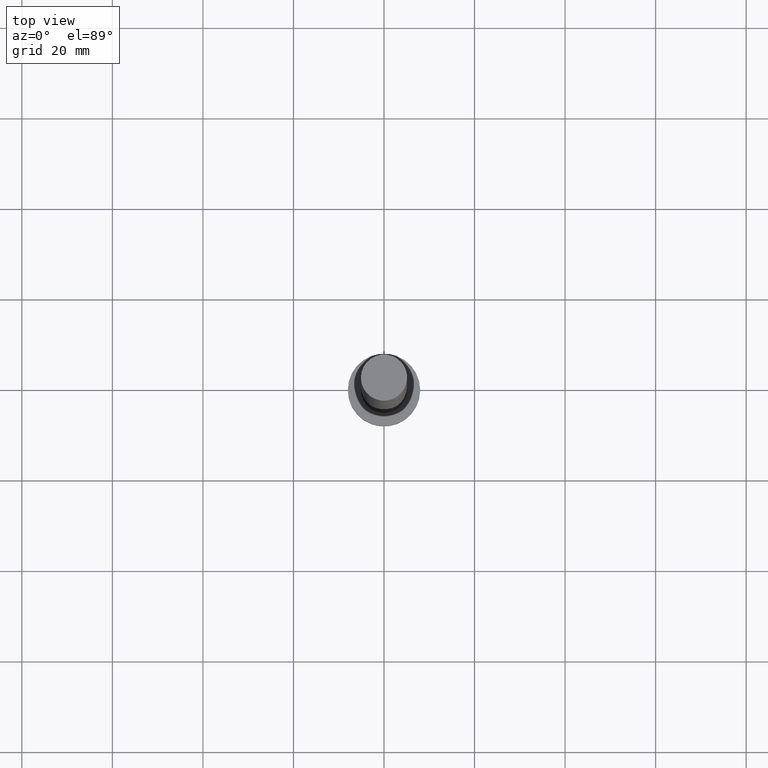
[diagram: clean part render]
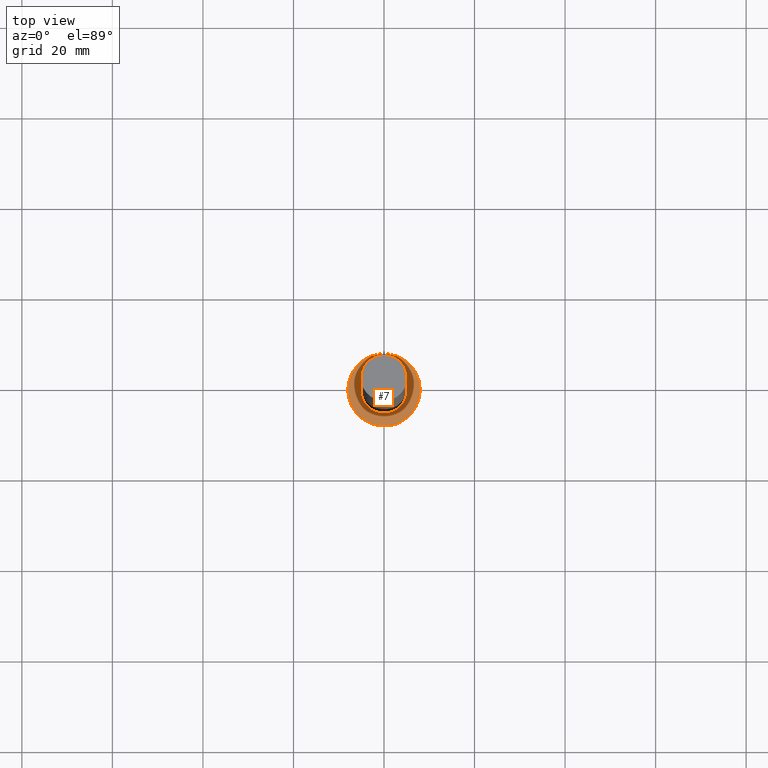
[diagram: same view with one face highlighted and labeled with its STEP entity id]
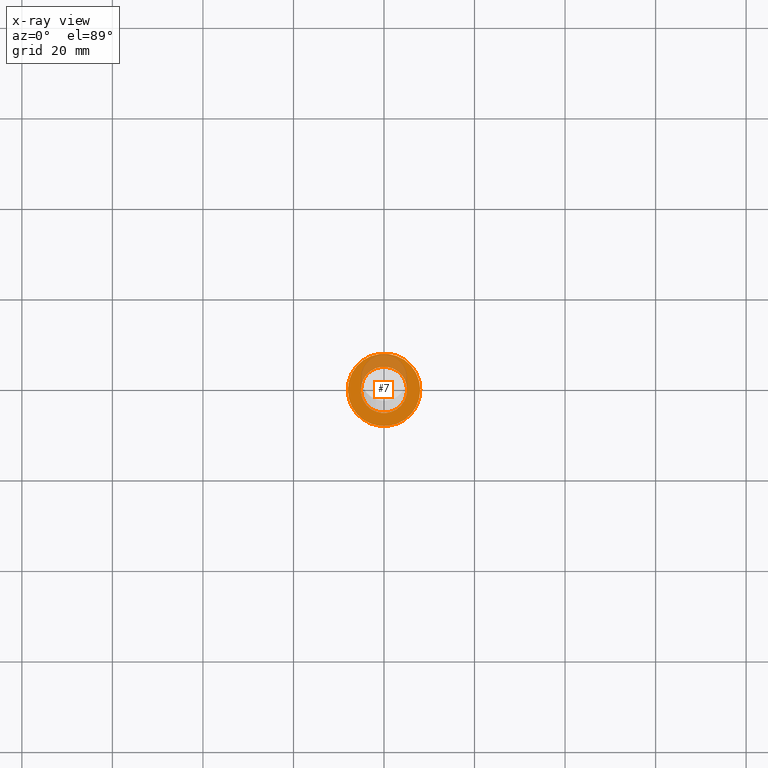
[diagram: x-ray of the same camera — body ghosted, the highlighted face saturated]
A machine part, top view. The second image highlights one B-rep face of the part: STEP entity #7.
The next image is the same camera in x-ray: the body ghosted, the highlighted face saturated — about 23% of this face is hidden behind the body in this view.
In plain terms, the highlighted planar face has unit normal (0, 0, 1).
Its self-contained STEP definition (entity closure, byte-faithful):
#3 = VERTEX_POINT ( 'NONE', #233 ) ;
#4 = CIRCLE ( 'NONE', #102, 8.000000000000000000 ) ;
#7 = ADVANCED_FACE ( 'NONE', ( #207, #46 ), #107, .T. ) ;
#17 = EDGE_CURVE ( 'NONE', #92, #36, #167, .T. ) ;
#33 = EDGE_CURVE ( 'NONE', #36, #92, #158, .T. ) ;
#34 = CIRCLE ( 'NONE', #208, 8.000000000000000000 ) ;
#36 = VERTEX_POINT ( 'NONE', #148 ) ;
#46 = FACE_OUTER_BOUND ( 'NONE', #232, .T. ) ;
#56 = VERTEX_POINT ( 'NONE', #122 ) ;
#65 = DIRECTION ( 'NONE',  ( 1.000000000000000000, 0.000000000000000000, -0.000000000000000000 ) ) ;
#68 = DIRECTION ( 'NONE',  ( 1.000000000000000000, 0.000000000000000000, 0.000000000000000000 ) ) ;
#83 = CARTESIAN_POINT ( 'NONE',  ( 0.000000000000000000, 0.000000000000000000, 5.000000000000000000 ) ) ;
#84 = ORIENTED_EDGE ( 'NONE', *, *, #204, .T. ) ;
#88 = ORIENTED_EDGE ( 'NONE', *, *, #182, .T. ) ;
#92 = VERTEX_POINT ( 'NONE', #142 ) ;
#100 = DIRECTION ( 'NONE',  ( 1.000000000000000000, 0.000000000000000000, 0.000000000000000000 ) ) ;
#102 = AXIS2_PLACEMENT_3D ( 'NONE', #124, #170, #202 ) ;
#107 = PLANE ( 'NONE',  #237 ) ;
#122 = CARTESIAN_POINT ( 'NONE',  ( 8.000000000000000000, 9.797174393178825657E-16, 5.000000000000000000 ) ) ;
#124 = CARTESIAN_POINT ( 'NONE',  ( 0.000000000000000000, 0.000000000000000000, 5.000000000000000000 ) ) ;
#125 = CARTESIAN_POINT ( 'NONE',  ( 0.000000000000000000, 0.000000000000000000, 5.000000000000000000 ) ) ;
#142 = CARTESIAN_POINT ( 'NONE',  ( -5.100000000000001421, 0.000000000000000000, 5.000000000000000000 ) ) ;
#147 = DIRECTION ( 'NONE',  ( 1.000000000000000000, 0.000000000000000000, 0.000000000000000000 ) ) ;
#148 = CARTESIAN_POINT ( 'NONE',  ( 5.100000000000001421, 6.245698675651502811E-16, 5.000000000000000000 ) ) ;
#158 = CIRCLE ( 'NONE', #175, 5.100000000000001421 ) ;
#161 = CARTESIAN_POINT ( 'NONE',  ( 0.000000000000000000, 0.000000000000000000, 5.000000000000000000 ) ) ;
#167 = CIRCLE ( 'NONE', #217, 5.100000000000001421 ) ;
#170 = DIRECTION ( 'NONE',  ( 0.000000000000000000, 0.000000000000000000, 1.000000000000000000 ) ) ;
#172 = DIRECTION ( 'NONE',  ( 0.000000000000000000, 0.000000000000000000, 1.000000000000000000 ) ) ;
#174 = DIRECTION ( 'NONE',  ( 0.000000000000000000, 0.000000000000000000, 1.000000000000000000 ) ) ;
#175 = AXIS2_PLACEMENT_3D ( 'NONE', #83, #174, #68 ) ;
#177 = ORIENTED_EDGE ( 'NONE', *, *, #17, .F. ) ;
#182 = EDGE_CURVE ( 'NONE', #56, #3, #34, .T. ) ;
#190 = CARTESIAN_POINT ( 'NONE',  ( 0.000000000000000000, 0.000000000000000000, 5.000000000000000000 ) ) ;
#200 = DIRECTION ( 'NONE',  ( 0.000000000000000000, 0.000000000000000000, 1.000000000000000000 ) ) ;
#202 = DIRECTION ( 'NONE',  ( 1.000000000000000000, 0.000000000000000000, 0.000000000000000000 ) ) ;
#204 = EDGE_CURVE ( 'NONE', #3, #56, #4, .T. ) ;
#207 = FACE_BOUND ( 'NONE', #240, .T. ) ;
#208 = AXIS2_PLACEMENT_3D ( 'NONE', #161, #200, #100 ) ;
#217 = AXIS2_PLACEMENT_3D ( 'NONE', #125, #172, #147 ) ;
#229 = DIRECTION ( 'NONE',  ( 0.000000000000000000, 0.000000000000000000, 1.000000000000000000 ) ) ;
#232 = EDGE_LOOP ( 'NONE', ( #84, #88 ) ) ;
#233 = CARTESIAN_POINT ( 'NONE',  ( -8.000000000000000000, 0.000000000000000000, 5.000000000000000000 ) ) ;
#237 = AXIS2_PLACEMENT_3D ( 'NONE', #190, #229, #65 ) ;
#240 = EDGE_LOOP ( 'NONE', ( #177, #249 ) ) ;
#249 = ORIENTED_EDGE ( 'NONE', *, *, #33, .F. ) ;